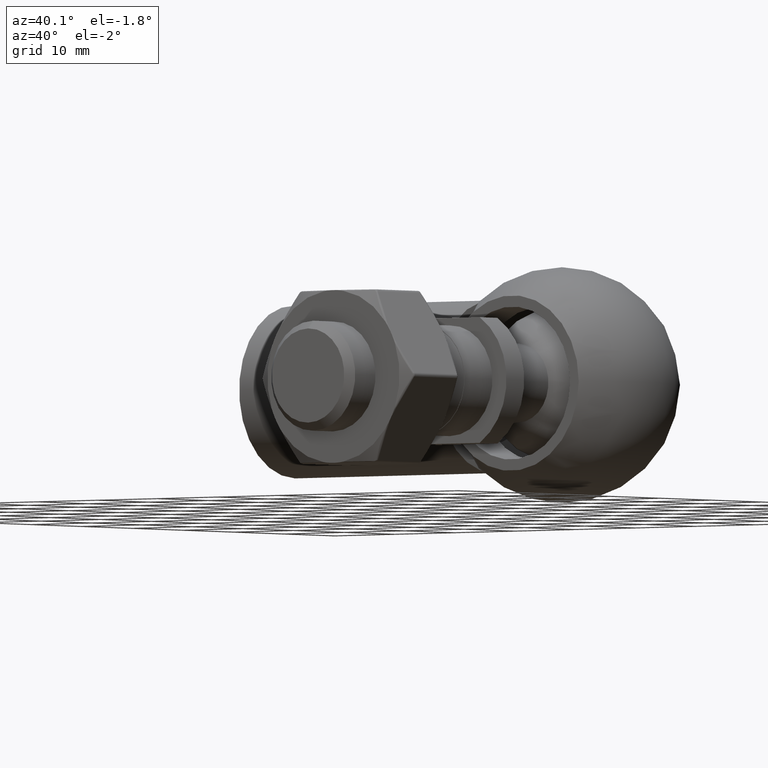
[diagram: clean part render]
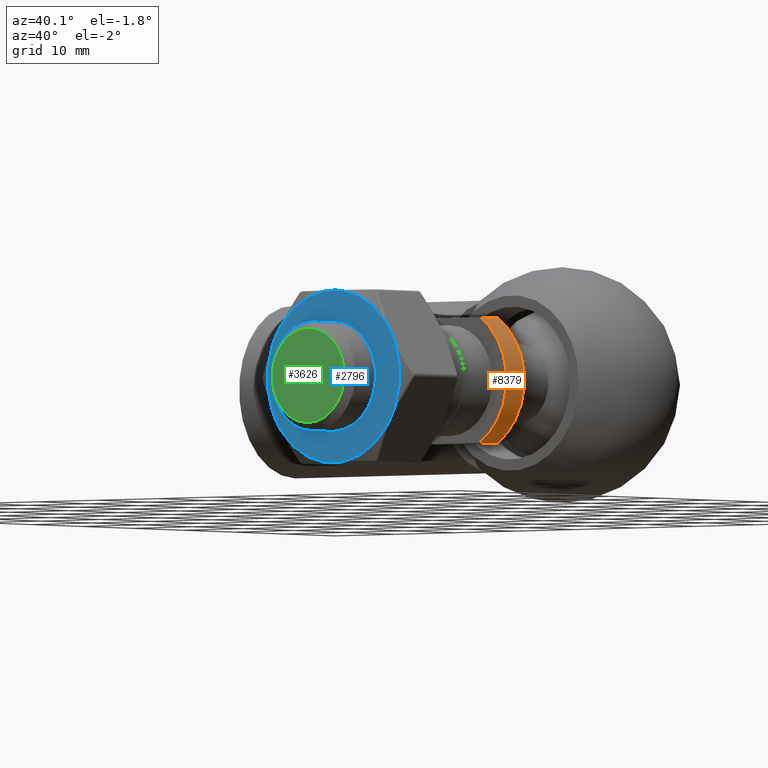
[diagram: same view with three faces highlighted in distinct colors, each labeled with its STEP entity id]
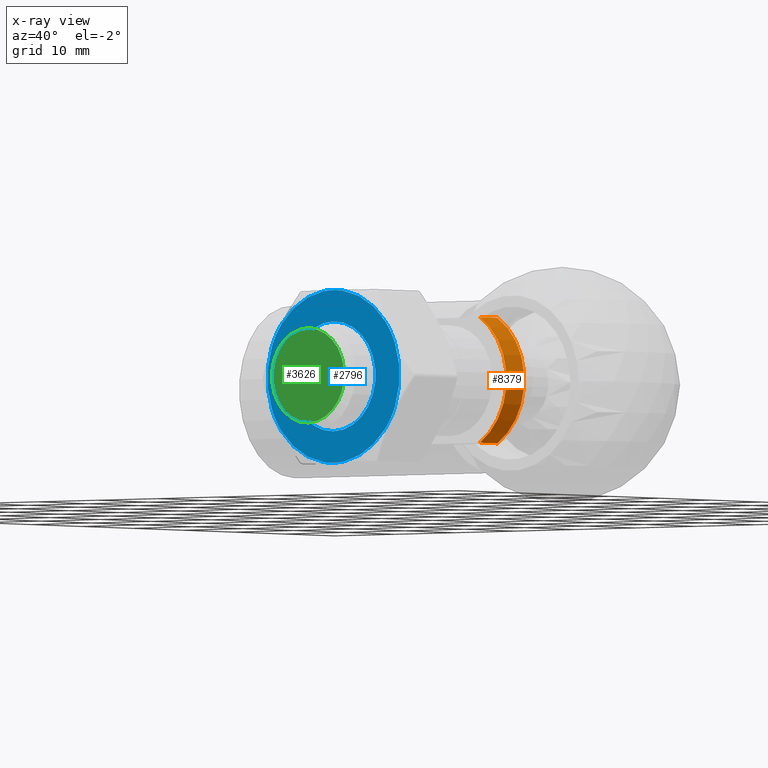
[diagram: x-ray of the same camera — body ghosted, the three highlighted faces saturated]
A machine part, auxiliary view with three faces highlighted in distinct colors.
The next image is the same camera in x-ray (body ghosted, the three faces saturated) — at least one of them is partly hidden behind the body in this view.
Their STEP definitions:

[orange] entity #8379 — the highlighted cylindrical surface (partial cylindrical patch) has radius 9.4 mm, axis along (-0, -1, -0).
#94 = CARTESIAN_POINT ( 'NONE',  ( 0.000000000000000000, 31.55000000000000071, 0.000000000000000000 ) ) ;
#547 = ORIENTED_EDGE ( 'NONE', *, *, #10214, .T. ) ;
#735 = VECTOR ( 'NONE', #9157, 1000.000000000000000 ) ;
#1199 = LINE ( 'NONE', #19386, #735 ) ;
#1569 = FACE_OUTER_BOUND ( 'NONE', #6011, .T. ) ;
#1722 = ORIENTED_EDGE ( 'NONE', *, *, #13026, .T. ) ;
#1982 = CARTESIAN_POINT ( 'NONE',  ( 4.935585071701226845, 31.55000000000000071, -8.000000000000000000 ) ) ;
#2180 = DIRECTION ( 'NONE',  ( -0.000000000000000000, -1.000000000000000000, -0.000000000000000000 ) ) ;
#2236 = CIRCLE ( 'NONE', #8294, 9.400000000000000355 ) ;
#2294 = VERTEX_POINT ( 'NONE', #9192 ) ;
#3518 = DIRECTION ( 'NONE',  ( 0.000000000000000000, 1.000000000000000000, 0.000000000000000000 ) ) ;
#4164 = DIRECTION ( 'NONE',  ( 0.000000000000000000, 0.000000000000000000, -1.000000000000000000 ) ) ;
#4561 = DIRECTION ( 'NONE',  ( 0.000000000000000000, 0.000000000000000000, 1.000000000000000000 ) ) ;
#4576 = EDGE_CURVE ( 'NONE', #16559, #18501, #7343, .T. ) ;
#4876 = CARTESIAN_POINT ( 'NONE',  ( 4.935585071701226845, 31.55000000000000071, -8.000000000000000000 ) ) ;
#5455 = EDGE_CURVE ( 'NONE', #15993, #16559, #8764, .T. ) ;
#6011 = EDGE_LOOP ( 'NONE', ( #547, #12197, #7510, #1722 ) ) ;
#6643 = CARTESIAN_POINT ( 'NONE',  ( 0.000000000000000000, 28.04999999999999716, 0.000000000000000000 ) ) ;
#7343 = LINE ( 'NONE', #1982, #9502 ) ;
#7510 = ORIENTED_EDGE ( 'NONE', *, *, #5455, .F. ) ;
#7624 = DIRECTION ( 'NONE',  ( 0.000000000000000000, 1.000000000000000000, 0.000000000000000000 ) ) ;
#8294 = AXIS2_PLACEMENT_3D ( 'NONE', #6643, #3518, #17361 ) ;
#8379 = ADVANCED_FACE ( 'NONE', ( #1569 ), #15837, .T. ) ;
#8764 = CIRCLE ( 'NONE', #13877, 9.400000000000000355 ) ;
#9157 = DIRECTION ( 'NONE',  ( -0.000000000000000000, -1.000000000000000000, -0.000000000000000000 ) ) ;
#9192 = CARTESIAN_POINT ( 'NONE',  ( 4.935585071701226845, 28.04999999999999716, 8.000000000000000000 ) ) ;
#9502 = VECTOR ( 'NONE', #2180, 1000.000000000000000 ) ;
#10214 = EDGE_CURVE ( 'NONE', #2294, #18501, #2236, .T. ) ;
#12197 = ORIENTED_EDGE ( 'NONE', *, *, #4576, .F. ) ;
#13026 = EDGE_CURVE ( 'NONE', #15993, #2294, #1199, .T. ) ;
#13877 = AXIS2_PLACEMENT_3D ( 'NONE', #94, #7624, #4561 ) ;
#13942 = CARTESIAN_POINT ( 'NONE',  ( 4.935585071701226845, 28.04999999999999716, -8.000000000000000000 ) ) ;
#15837 = CYLINDRICAL_SURFACE ( 'NONE', #19115, 9.400000000000000355 ) ;
#15993 = VERTEX_POINT ( 'NONE', #16817 ) ;
#16559 = VERTEX_POINT ( 'NONE', #4876 ) ;
#16817 = CARTESIAN_POINT ( 'NONE',  ( 4.935585071701226845, 31.55000000000000071, 8.000000000000000000 ) ) ;
#17361 = DIRECTION ( 'NONE',  ( 0.000000000000000000, 0.000000000000000000, 1.000000000000000000 ) ) ;
#17414 = DIRECTION ( 'NONE',  ( -0.000000000000000000, -1.000000000000000000, -0.000000000000000000 ) ) ;
#18501 = VERTEX_POINT ( 'NONE', #13942 ) ;
#19115 = AXIS2_PLACEMENT_3D ( 'NONE', #19466, #17414, #4164 ) ;
#19386 = CARTESIAN_POINT ( 'NONE',  ( 4.935585071701226845, 31.55000000000000071, 8.000000000000000000 ) ) ;
#19466 = CARTESIAN_POINT ( 'NONE',  ( 0.000000000000000000, 31.55000000000000071, 0.000000000000000000 ) ) ;

[blue] entity #2796 — the highlighted planar face has unit normal (0, 1, 0).
#38 = ORIENTED_EDGE ( 'NONE', *, *, #16976, .T. ) ;
#110 = ORIENTED_EDGE ( 'NONE', *, *, #19224, .T. ) ;
#225 = VERTEX_POINT ( 'NONE', #15675 ) ;
#271 = CARTESIAN_POINT ( 'NONE',  ( 0.000000000000000000, -5.250000000000004441, 0.000000000000000000 ) ) ;
#359 = ORIENTED_EDGE ( 'NONE', *, *, #1936, .T. ) ;
#641 = CIRCLE ( 'NONE', #18486, 11.00000000000002132 ) ;
#703 = DIRECTION ( 'NONE',  ( 0.000000000000000000, 0.000000000000000000, 1.000000000000000000 ) ) ;
#1024 = DIRECTION ( 'NONE',  ( -8.881784197001252323E-16, 0.000000000000000000, 1.000000000000000000 ) ) ;
#1390 = VERTEX_POINT ( 'NONE', #14327 ) ;
#1427 = CARTESIAN_POINT ( 'NONE',  ( 0.000000000000000000, -5.250000000000004441, 0.000000000000000000 ) ) ;
#1572 = CIRCLE ( 'NONE', #9409, 11.00000000000002309 ) ;
#1595 = CIRCLE ( 'NONE', #3823, 11.00000000000002132 ) ;
#1801 = CARTESIAN_POINT ( 'NONE',  ( 9.526279441628830114, -5.250000000000004441, 5.500000000000005329 ) ) ;
#1826 = VERTEX_POINT ( 'NONE', #16862 ) ;
#1936 = EDGE_CURVE ( 'NONE', #2946, #18381, #4361, .T. ) ;
#1969 = ORIENTED_EDGE ( 'NONE', *, *, #9605, .T. ) ;
#2019 = ORIENTED_EDGE ( 'NONE', *, *, #4550, .T. ) ;
#2056 = CIRCLE ( 'NONE', #4364, 11.00000000000002132 ) ;
#2077 = DIRECTION ( 'NONE',  ( 0.000000000000000000, 0.000000000000000000, 1.000000000000000000 ) ) ;
#2143 = AXIS2_PLACEMENT_3D ( 'NONE', #12722, #15808, #12590 ) ;
#2228 = CARTESIAN_POINT ( 'NONE',  ( 0.000000000000000000, -5.250000000000004441, 0.000000000000000000 ) ) ;
#2285 = ORIENTED_EDGE ( 'NONE', *, *, #17950, .T. ) ;
#2331 = DIRECTION ( 'NONE',  ( -6.997981709413460281E-17, -1.000000000000000000, 0.000000000000000000 ) ) ;
#2336 = CIRCLE ( 'NONE', #14663, 11.00000000000002309 ) ;
#2359 = VERTEX_POINT ( 'NONE', #1801 ) ;
#2464 = CIRCLE ( 'NONE', #7736, 11.00000000000002132 ) ;
#2465 = EDGE_CURVE ( 'NONE', #10104, #4115, #2464, .T. ) ;
#2592 = DIRECTION ( 'NONE',  ( -0.000000000000000000, -1.000000000000000000, -0.000000000000000000 ) ) ;
#2762 = ORIENTED_EDGE ( 'NONE', *, *, #15289, .T. ) ;
#2796 = ADVANCED_FACE ( 'NONE', ( #4819, #17651 ), #16417, .F. ) ;
#2946 = VERTEX_POINT ( 'NONE', #18673 ) ;
#3362 = EDGE_CURVE ( 'NONE', #1826, #13846, #19292, .T. ) ;
#3484 = EDGE_CURVE ( 'NONE', #13846, #16221, #4568, .T. ) ;
#3515 = ORIENTED_EDGE ( 'NONE', *, *, #8956, .T. ) ;
#3710 = CARTESIAN_POINT ( 'NONE',  ( 0.000000000000000000, -5.250000000000004441, 0.000000000000000000 ) ) ;
#3762 = AXIS2_PLACEMENT_3D ( 'NONE', #3710, #17476, #9899 ) ;
#3821 = DIRECTION ( 'NONE',  ( -0.000000000000000000, -1.000000000000000000, -0.000000000000000000 ) ) ;
#3823 = AXIS2_PLACEMENT_3D ( 'NONE', #14599, #2592, #16137 ) ;
#3866 = EDGE_CURVE ( 'NONE', #11058, #1390, #12344, .T. ) ;
#3934 = DIRECTION ( 'NONE',  ( 0.000000000000000000, 0.000000000000000000, 1.000000000000000000 ) ) ;
#3994 = DIRECTION ( 'NONE',  ( -0.000000000000000000, -1.000000000000000000, -0.000000000000000000 ) ) ;
#4026 = CARTESIAN_POINT ( 'NONE',  ( -9.526279441628830114, -5.250000000000004441, -5.500000000000005329 ) ) ;
#4094 = CARTESIAN_POINT ( 'NONE',  ( 0.000000000000000000, -5.250000000000004441, 0.000000000000000000 ) ) ;
#4115 = VERTEX_POINT ( 'NONE', #7001 ) ;
#4186 = ORIENTED_EDGE ( 'NONE', *, *, #3866, .T. ) ;
#4215 = CIRCLE ( 'NONE', #14253, 11.00000000000002132 ) ;
#4271 = DIRECTION ( 'NONE',  ( 0.000000000000000000, 0.000000000000000000, 1.000000000000000000 ) ) ;
#4361 = CIRCLE ( 'NONE', #10417, 11.00000000000002132 ) ;
#4364 = AXIS2_PLACEMENT_3D ( 'NONE', #4094, #5632, #17871 ) ;
#4458 = ORIENTED_EDGE ( 'NONE', *, *, #7187, .T. ) ;
#4550 = EDGE_CURVE ( 'NONE', #4115, #14372, #18063, .T. ) ;
#4568 = CIRCLE ( 'NONE', #4940, 11.00000000000002132 ) ;
#4670 = AXIS2_PLACEMENT_3D ( 'NONE', #14382, #13024, #3934 ) ;
#4819 = FACE_BOUND ( 'NONE', #6862, .T. ) ;
#4940 = AXIS2_PLACEMENT_3D ( 'NONE', #5667, #16296, #10122 ) ;
#5089 = ORIENTED_EDGE ( 'NONE', *, *, #10204, .T. ) ;
#5114 = DIRECTION ( 'NONE',  ( 0.000000000000000000, 0.000000000000000000, 1.000000000000000000 ) ) ;
#5200 = DIRECTION ( 'NONE',  ( 1.243449787580175483E-14, 0.000000000000000000, 1.000000000000000000 ) ) ;
#5239 = CARTESIAN_POINT ( 'NONE',  ( 0.000000000000000000, -5.250000000000004441, 0.000000000000000000 ) ) ;
#5632 = DIRECTION ( 'NONE',  ( -0.000000000000000000, -1.000000000000000000, -0.000000000000000000 ) ) ;
#5644 = DIRECTION ( 'NONE',  ( -6.997981709413460281E-17, -1.000000000000000000, 0.000000000000000000 ) ) ;
#5667 = CARTESIAN_POINT ( 'NONE',  ( 0.000000000000000000, -5.250000000000004441, 0.000000000000000000 ) ) ;
#5708 = EDGE_CURVE ( 'NONE', #19692, #11710, #17343, .T. ) ;
#5836 = AXIS2_PLACEMENT_3D ( 'NONE', #14848, #14774, #1024 ) ;
#5903 = EDGE_CURVE ( 'NONE', #1390, #1826, #4215, .T. ) ;
#5928 = AXIS2_PLACEMENT_3D ( 'NONE', #15907, #8446, #5200 ) ;
#6007 = CARTESIAN_POINT ( 'NONE',  ( 8.585273868635272976, -5.250000000000004441, 6.876995899411930679 ) ) ;
#6061 = CARTESIAN_POINT ( 'NONE',  ( 0.000000000000000000, -5.250000000000004441, 10.99999999999999645 ) ) ;
#6098 = CARTESIAN_POINT ( 'NONE',  ( 10.24829008492977778, -5.250000000000004441, 3.996567318978905270 ) ) ;
#6217 = VERTEX_POINT ( 'NONE', #6061 ) ;
#6366 = AXIS2_PLACEMENT_3D ( 'NONE', #2228, #6808, #703 ) ;
#6790 = CIRCLE ( 'NONE', #3762, 11.00000000000002132 ) ;
#6808 = DIRECTION ( 'NONE',  ( -0.000000000000000000, -1.000000000000000000, -0.000000000000000000 ) ) ;
#6862 = EDGE_LOOP ( 'NONE', ( #1969 ) ) ;
#7001 = CARTESIAN_POINT ( 'NONE',  ( 1.663016216294527228, -5.250000000000004441, -10.87356321839080842 ) ) ;
#7187 = EDGE_CURVE ( 'NONE', #12743, #11058, #1595, .T. ) ;
#7303 = CARTESIAN_POINT ( 'NONE',  ( 0.000000000000000000, -5.250000000000004441, 0.000000000000000000 ) ) ;
#7318 = ORIENTED_EDGE ( 'NONE', *, *, #7612, .T. ) ;
#7612 = EDGE_CURVE ( 'NONE', #16221, #19692, #641, .T. ) ;
#7640 = AXIS2_PLACEMENT_3D ( 'NONE', #14537, #2331, #11359 ) ;
#7736 = AXIS2_PLACEMENT_3D ( 'NONE', #17222, #8117, #5114 ) ;
#8117 = DIRECTION ( 'NONE',  ( -0.000000000000000000, -1.000000000000000000, -0.000000000000000000 ) ) ;
#8158 = CARTESIAN_POINT ( 'NONE',  ( 0.000000000000000000, -5.250000000000004441, 0.000000000000000000 ) ) ;
#8446 = DIRECTION ( 'NONE',  ( -0.000000000000000000, -1.000000000000000000, -0.000000000000000000 ) ) ;
#8478 = CIRCLE ( 'NONE', #10109, 11.00000000000002132 ) ;
#8836 = DIRECTION ( 'NONE',  ( 1.000000000000000000, -7.885106708985470545E-17, 0.000000000000000000 ) ) ;
#8956 = EDGE_CURVE ( 'NONE', #225, #6217, #10587, .T. ) ;
#9409 = AXIS2_PLACEMENT_3D ( 'NONE', #9703, #18552, #14221 ) ;
#9432 = AXIS2_PLACEMENT_3D ( 'NONE', #271, #18578, #2077 ) ;
#9578 = VERTEX_POINT ( 'NONE', #6007 ) ;
#9605 = EDGE_CURVE ( 'NONE', #10111, #10111, #11044, .T. ) ;
#9703 = CARTESIAN_POINT ( 'NONE',  ( 0.000000000000000000, -5.250000000000004441, 0.000000000000000000 ) ) ;
#9899 = DIRECTION ( 'NONE',  ( 0.000000000000000000, 0.000000000000000000, 1.000000000000000000 ) ) ;
#9930 = CIRCLE ( 'NONE', #5928, 11.00000000000002132 ) ;
#10035 = ORIENTED_EDGE ( 'NONE', *, *, #3362, .T. ) ;
#10104 = VERTEX_POINT ( 'NONE', #12343 ) ;
#10109 = AXIS2_PLACEMENT_3D ( 'NONE', #16460, #16528, #17938 ) ;
#10111 = VERTEX_POINT ( 'NONE', #11284 ) ;
#10122 = DIRECTION ( 'NONE',  ( -2.664535259100376091E-15, 0.000000000000000000, 1.000000000000000000 ) ) ;
#10130 = CARTESIAN_POINT ( 'NONE',  ( -10.24829008492980620, -5.250000000000004441, -3.996567318978821781 ) ) ;
#10204 = EDGE_CURVE ( 'NONE', #14372, #15524, #11026, .T. ) ;
#10282 = ORIENTED_EDGE ( 'NONE', *, *, #17064, .T. ) ;
#10394 = CARTESIAN_POINT ( 'NONE',  ( 9.526279441628835443, -5.250000000000004441, -5.500000000000005329 ) ) ;
#10417 = AXIS2_PLACEMENT_3D ( 'NONE', #16160, #3994, #11448 ) ;
#10587 = CIRCLE ( 'NONE', #7640, 11.00000000000002309 ) ;
#10750 = ORIENTED_EDGE ( 'NONE', *, *, #5708, .T. ) ;
#11026 = CIRCLE ( 'NONE', #13635, 11.00000000000002132 ) ;
#11044 = CIRCLE ( 'NONE', #9432, 7.000000000000011546 ) ;
#11058 = VERTEX_POINT ( 'NONE', #18943 ) ;
#11284 = CARTESIAN_POINT ( 'NONE',  ( 0.000000000000000000, -5.250000000000004441, 7.000000000000011546 ) ) ;
#11359 = DIRECTION ( 'NONE',  ( 1.000000000000000000, -7.885106708985470545E-17, 0.000000000000000000 ) ) ;
#11384 = CARTESIAN_POINT ( 'NONE',  ( -1.663016216294541216, -5.250000000000004441, -10.87356321839077999 ) ) ;
#11448 = DIRECTION ( 'NONE',  ( 0.000000000000000000, 0.000000000000000000, 1.000000000000000000 ) ) ;
#11533 = CARTESIAN_POINT ( 'NONE',  ( -8.585273868635237449, -5.250000000000004441, -6.876995899411958213 ) ) ;
#11710 = VERTEX_POINT ( 'NONE', #11384 ) ;
#12343 = CARTESIAN_POINT ( 'NONE',  ( 0.000000000000000000, -5.250000000000004441, -10.99999999999998224 ) ) ;
#12344 = CIRCLE ( 'NONE', #5836, 11.00000000000002132 ) ;
#12590 = DIRECTION ( 'NONE',  ( 0.000000000000000000, 0.000000000000000000, 1.000000000000000000 ) ) ;
#12594 = DIRECTION ( 'NONE',  ( -1.154631945610162644E-14, 0.000000000000000000, 1.000000000000000000 ) ) ;
#12722 = CARTESIAN_POINT ( 'NONE',  ( 0.000000000000000000, -5.250000000000004441, 0.000000000000000000 ) ) ;
#12743 = VERTEX_POINT ( 'NONE', #16955 ) ;
#13024 = DIRECTION ( 'NONE',  ( -0.000000000000000000, -1.000000000000000000, -0.000000000000000000 ) ) ;
#13124 = CARTESIAN_POINT ( 'NONE',  ( 8.585273868635265870, -5.250000000000004441, -6.876995899411930679 ) ) ;
#13415 = DIRECTION ( 'NONE',  ( 0.000000000000000000, 0.000000000000000000, 1.000000000000000000 ) ) ;
#13635 = AXIS2_PLACEMENT_3D ( 'NONE', #5239, #15692, #12594 ) ;
#13846 = VERTEX_POINT ( 'NONE', #10130 ) ;
#14221 = DIRECTION ( 'NONE',  ( 1.000000000000000000, -7.885106708985470545E-17, 0.000000000000000000 ) ) ;
#14253 = AXIS2_PLACEMENT_3D ( 'NONE', #1427, #15103, #4271 ) ;
#14327 = CARTESIAN_POINT ( 'NONE',  ( -9.526279441628856759, -5.250000000000004441, 5.500000000000005329 ) ) ;
#14338 = EDGE_LOOP ( 'NONE', ( #2762, #110, #3515, #19350, #4458, #4186, #18533, #10035, #14724, #7318, #10750, #38, #18288, #2019, #5089, #2285, #359, #10282 ) ) ;
#14372 = VERTEX_POINT ( 'NONE', #13124 ) ;
#14382 = CARTESIAN_POINT ( 'NONE',  ( 0.000000000000000000, -5.250000000000004441, 0.000000000000000000 ) ) ;
#14537 = CARTESIAN_POINT ( 'NONE',  ( 0.000000000000000000, -5.250000000000004441, 0.000000000000000000 ) ) ;
#14599 = CARTESIAN_POINT ( 'NONE',  ( 0.000000000000000000, -5.250000000000004441, 0.000000000000000000 ) ) ;
#14663 = AXIS2_PLACEMENT_3D ( 'NONE', #14734, #5644, #8836 ) ;
#14724 = ORIENTED_EDGE ( 'NONE', *, *, #3484, .T. ) ;
#14734 = CARTESIAN_POINT ( 'NONE',  ( 0.000000000000000000, -5.250000000000004441, 0.000000000000000000 ) ) ;
#14774 = DIRECTION ( 'NONE',  ( -0.000000000000000000, -1.000000000000000000, -0.000000000000000000 ) ) ;
#14848 = CARTESIAN_POINT ( 'NONE',  ( 0.000000000000000000, -5.250000000000004441, 0.000000000000000000 ) ) ;
#15103 = DIRECTION ( 'NONE',  ( -0.000000000000000000, -1.000000000000000000, -0.000000000000000000 ) ) ;
#15289 = EDGE_CURVE ( 'NONE', #2359, #9578, #2336, .T. ) ;
#15524 = VERTEX_POINT ( 'NONE', #10394 ) ;
#15675 = CARTESIAN_POINT ( 'NONE',  ( 1.663016216294548100, -5.250000000000004441, 10.87356321839090612 ) ) ;
#15692 = DIRECTION ( 'NONE',  ( -0.000000000000000000, -1.000000000000000000, -0.000000000000000000 ) ) ;
#15808 = DIRECTION ( 'NONE',  ( -0.000000000000000000, -1.000000000000000000, -0.000000000000000000 ) ) ;
#15907 = CARTESIAN_POINT ( 'NONE',  ( 0.000000000000000000, -5.250000000000004441, 0.000000000000000000 ) ) ;
#15987 = DIRECTION ( 'NONE',  ( 0.000000000000000000, 0.000000000000000000, 1.000000000000000000 ) ) ;
#16137 = DIRECTION ( 'NONE',  ( 0.000000000000000000, 0.000000000000000000, 1.000000000000000000 ) ) ;
#16160 = CARTESIAN_POINT ( 'NONE',  ( 0.000000000000000000, -5.250000000000004441, 0.000000000000000000 ) ) ;
#16221 = VERTEX_POINT ( 'NONE', #4026 ) ;
#16296 = DIRECTION ( 'NONE',  ( -0.000000000000000000, -1.000000000000000000, -0.000000000000000000 ) ) ;
#16417 = PLANE ( 'NONE',  #17929 ) ;
#16460 = CARTESIAN_POINT ( 'NONE',  ( 0.000000000000000000, -5.250000000000004441, 0.000000000000000000 ) ) ;
#16528 = DIRECTION ( 'NONE',  ( -0.000000000000000000, -1.000000000000000000, -0.000000000000000000 ) ) ;
#16862 = CARTESIAN_POINT ( 'NONE',  ( -10.24829008492986127, -5.250000000000004441, 3.996567318978835992 ) ) ;
#16955 = CARTESIAN_POINT ( 'NONE',  ( -1.663016216294548100, -5.250000000000004441, 10.87356321839080842 ) ) ;
#16976 = EDGE_CURVE ( 'NONE', #11710, #10104, #8478, .T. ) ;
#17064 = EDGE_CURVE ( 'NONE', #18381, #2359, #2056, .T. ) ;
#17222 = CARTESIAN_POINT ( 'NONE',  ( 0.000000000000000000, -5.250000000000004441, 0.000000000000000000 ) ) ;
#17343 = CIRCLE ( 'NONE', #6366, 11.00000000000002132 ) ;
#17476 = DIRECTION ( 'NONE',  ( -0.000000000000000000, -1.000000000000000000, -0.000000000000000000 ) ) ;
#17651 = FACE_OUTER_BOUND ( 'NONE', #14338, .T. ) ;
#17871 = DIRECTION ( 'NONE',  ( -7.993605777301127091E-15, 0.000000000000000000, 1.000000000000000000 ) ) ;
#17929 = AXIS2_PLACEMENT_3D ( 'NONE', #7303, #17954, #13415 ) ;
#17938 = DIRECTION ( 'NONE',  ( 8.881784197001253901E-15, 0.000000000000000000, 1.000000000000000000 ) ) ;
#17950 = EDGE_CURVE ( 'NONE', #15524, #2946, #9930, .T. ) ;
#17954 = DIRECTION ( 'NONE',  ( 0.000000000000000000, 1.000000000000000000, 0.000000000000000000 ) ) ;
#18063 = CIRCLE ( 'NONE', #2143, 11.00000000000002132 ) ;
#18288 = ORIENTED_EDGE ( 'NONE', *, *, #2465, .T. ) ;
#18381 = VERTEX_POINT ( 'NONE', #6098 ) ;
#18486 = AXIS2_PLACEMENT_3D ( 'NONE', #8158, #3821, #15987 ) ;
#18533 = ORIENTED_EDGE ( 'NONE', *, *, #5903, .T. ) ;
#18552 = DIRECTION ( 'NONE',  ( -6.997981709413460281E-17, -1.000000000000000000, 0.000000000000000000 ) ) ;
#18578 = DIRECTION ( 'NONE',  ( 0.000000000000000000, 1.000000000000000000, 0.000000000000000000 ) ) ;
#18673 = CARTESIAN_POINT ( 'NONE',  ( 10.24829008492979199, -5.250000000000004441, -3.996567318978877736 ) ) ;
#18943 = CARTESIAN_POINT ( 'NONE',  ( -8.585273868635223238, -5.250000000000004441, 6.876995899411985746 ) ) ;
#19224 = EDGE_CURVE ( 'NONE', #9578, #225, #1572, .T. ) ;
#19292 = CIRCLE ( 'NONE', #4670, 11.00000000000002132 ) ;
#19335 = EDGE_CURVE ( 'NONE', #6217, #12743, #6790, .T. ) ;
#19350 = ORIENTED_EDGE ( 'NONE', *, *, #19335, .T. ) ;
#19692 = VERTEX_POINT ( 'NONE', #11533 ) ;

[green] entity #3626 — the highlighted planar face has unit normal (0, 1, 0).
#1946 = EDGE_LOOP ( 'NONE', ( #9740 ) ) ;
#2257 = VERTEX_POINT ( 'NONE', #10155 ) ;
#3626 = ADVANCED_FACE ( 'NONE', ( #10689 ), #13679, .F. ) ;
#4573 = DIRECTION ( 'NONE',  ( 0.000000000000000000, 1.000000000000000000, 0.000000000000000000 ) ) ;
#9565 = AXIS2_PLACEMENT_3D ( 'NONE', #9819, #11199, #12706 ) ;
#9740 = ORIENTED_EDGE ( 'NONE', *, *, #11372, .T. ) ;
#9819 = CARTESIAN_POINT ( 'NONE',  ( 0.000000000000000000, 0.000000000000000000, 0.000000000000000000 ) ) ;
#10155 = CARTESIAN_POINT ( 'NONE',  ( 0.000000000000000000, 0.000000000000000000, 5.999999999999978684 ) ) ;
#10689 = FACE_OUTER_BOUND ( 'NONE', #1946, .T. ) ;
#10888 = DIRECTION ( 'NONE',  ( 0.000000000000000000, -0.000000000000000000, 1.000000000000000000 ) ) ;
#11199 = DIRECTION ( 'NONE',  ( -0.000000000000000000, -1.000000000000000000, -0.000000000000000000 ) ) ;
#11372 = EDGE_CURVE ( 'NONE', #2257, #2257, #18855, .T. ) ;
#12568 = AXIS2_PLACEMENT_3D ( 'NONE', #13884, #4573, #10888 ) ;
#12706 = DIRECTION ( 'NONE',  ( 0.000000000000000000, 0.000000000000000000, 1.000000000000000000 ) ) ;
#13679 = PLANE ( 'NONE',  #12568 ) ;
#13884 = CARTESIAN_POINT ( 'NONE',  ( 0.000000000000000000, 0.000000000000000000, 0.000000000000000000 ) ) ;
#18855 = CIRCLE ( 'NONE', #9565, 5.999999999999978684 ) ;